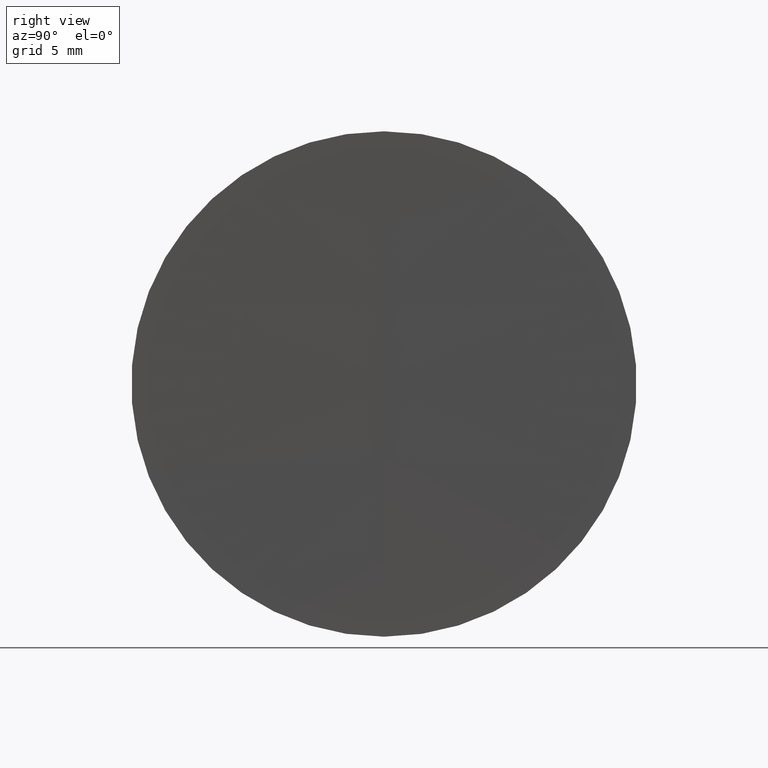
[diagram: clean part render]
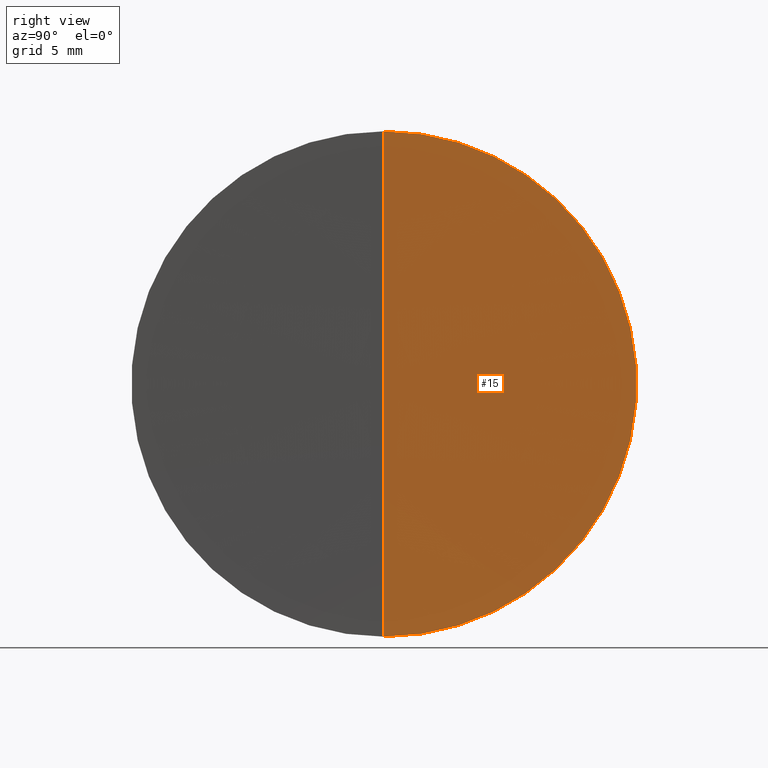
[diagram: same view with one face highlighted and labeled with its STEP entity id]
A machine part, right view. The second image highlights one B-rep face of the part: STEP entity #15.
In plain terms, the highlighted spherical surface has radius 2000 mm.
Its self-contained STEP definition (entity closure, byte-faithful):
#15 = ADVANCED_FACE ( 'NONE', ( #146 ), #250, .F. ) ;
#23 = CIRCLE ( 'NONE', #318, 1999.999999999999100 ) ;
#38 = AXIS2_PLACEMENT_3D ( 'NONE', #113, #217, #165 ) ;
#88 = CIRCLE ( 'NONE', #125, 12.70000000000000300 ) ;
#93 = AXIS2_PLACEMENT_3D ( 'NONE', #156, #316, #130 ) ;
#112 = VERTEX_POINT ( 'NONE', #322 ) ;
#113 = CARTESIAN_POINT ( 'NONE',  ( 2350.600125938112300, 0.0000000000000000000, 0.0000000000000000000 ) ) ;
#125 = AXIS2_PLACEMENT_3D ( 'NONE', #155, #315, #129 ) ;
#129 = DIRECTION ( 'NONE',  ( 0.0000000000000000000, 0.0000000000000000000, 1.000000000000000000 ) ) ;
#130 = DIRECTION ( 'NONE',  ( 0.0000000000000000000, 1.224646799147353200E-016, -1.000000000000000000 ) ) ;
#146 = FACE_OUTER_BOUND ( 'NONE', #255, .T. ) ;
#154 = DIRECTION ( 'NONE',  ( 0.0000000000000000000, 1.000000000000000000, -0.0000000000000000000 ) ) ;
#155 = CARTESIAN_POINT ( 'NONE',  ( 350.6404488445973600, 0.0000000000000000000, 0.0000000000000000000 ) ) ;
#156 = CARTESIAN_POINT ( 'NONE',  ( 2350.600125938112300, 0.0000000000000000000, 0.0000000000000000000 ) ) ;
#165 = DIRECTION ( 'NONE',  ( 0.0000000000000000000, 0.0000000000000000000, -1.000000000000000000 ) ) ;
#182 = ORIENTED_EDGE ( 'NONE', *, *, #221, .F. ) ;
#187 = ORIENTED_EDGE ( 'NONE', *, *, #201, .T. ) ;
#194 = CARTESIAN_POINT ( 'NONE',  ( 350.6404488445973600, 0.0000000000000000000, 12.70000000000000300 ) ) ;
#201 = EDGE_CURVE ( 'NONE', #307, #112, #207, .T. ) ;
#207 = CIRCLE ( 'NONE', #93, 1999.999999999999100 ) ;
#214 = ORIENTED_EDGE ( 'NONE', *, *, #249, .F. ) ;
#217 = DIRECTION ( 'NONE',  ( -0.0000000000000000000, -1.000000000000000000, -0.0000000000000000000 ) ) ;
#221 = EDGE_CURVE ( 'NONE', #307, #241, #88, .T. ) ;
#241 = VERTEX_POINT ( 'NONE', #286 ) ;
#249 = EDGE_CURVE ( 'NONE', #241, #112, #23, .T. ) ;
#250 = SPHERICAL_SURFACE ( 'NONE', #38, 1999.999999999999100 ) ;
#255 = EDGE_LOOP ( 'NONE', ( #182, #187, #214 ) ) ;
#286 = CARTESIAN_POINT ( 'NONE',  ( 350.6404488445973600, 1.555301434917139800E-015, -12.70000000000000300 ) ) ;
#307 = VERTEX_POINT ( 'NONE', #194 ) ;
#312 = DIRECTION ( 'NONE',  ( 0.0000000000000000000, 0.0000000000000000000, 1.000000000000000000 ) ) ;
#315 = DIRECTION ( 'NONE',  ( -1.000000000000000000, -0.0000000000000000000, -0.0000000000000000000 ) ) ;
#316 = DIRECTION ( 'NONE',  ( 0.0000000000000000000, -1.000000000000000000, -1.224646799147353200E-016 ) ) ;
#318 = AXIS2_PLACEMENT_3D ( 'NONE', #343, #154, #312 ) ;
#322 = CARTESIAN_POINT ( 'NONE',  ( 350.6001259381133100, 0.0000000000000000000, -1.224646799147352700E-013 ) ) ;
#343 = CARTESIAN_POINT ( 'NONE',  ( 2350.600125938112300, 0.0000000000000000000, 0.0000000000000000000 ) ) ;